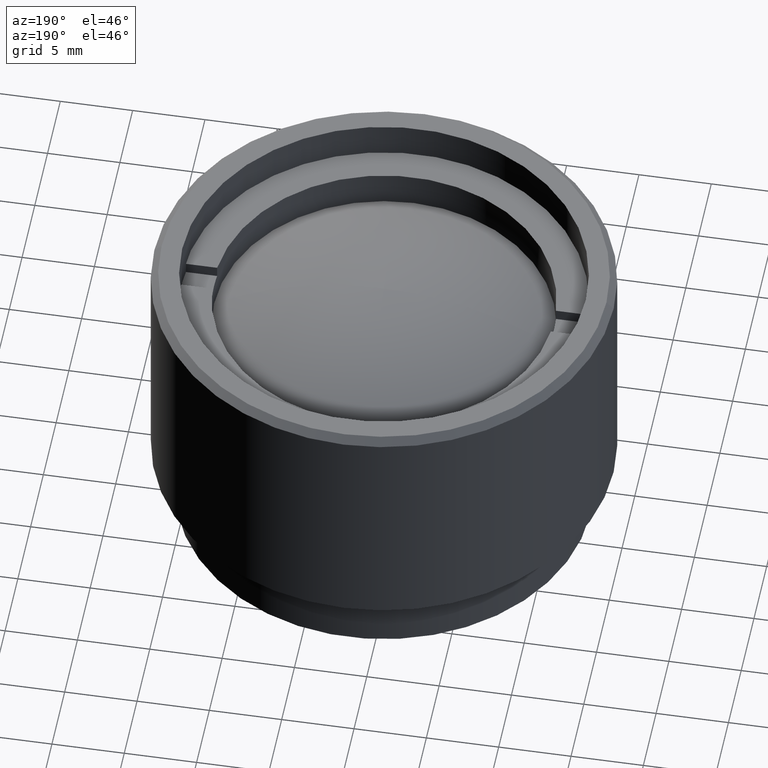
[diagram: clean part render]
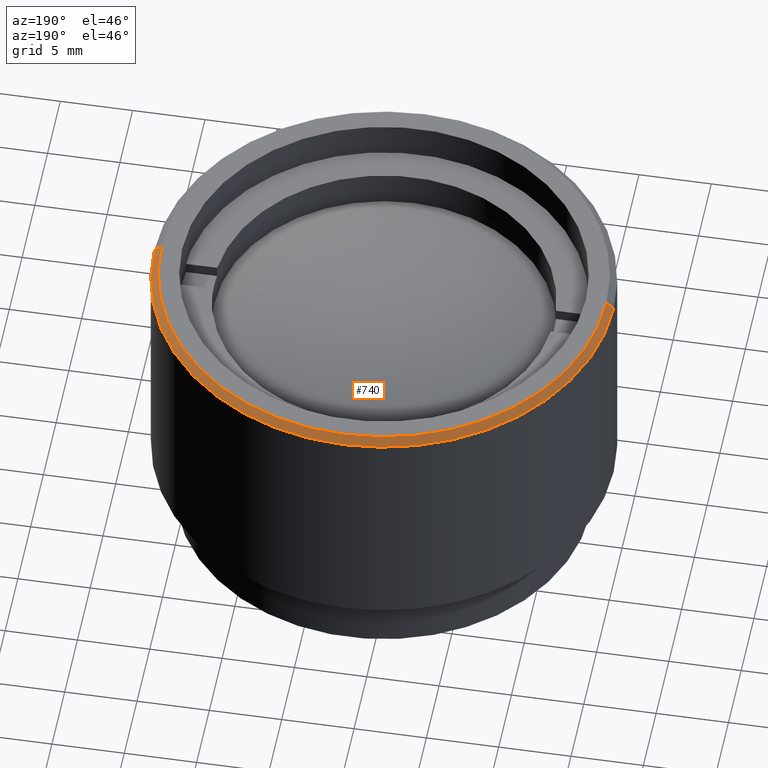
[diagram: same view with one face highlighted and labeled with its STEP entity id]
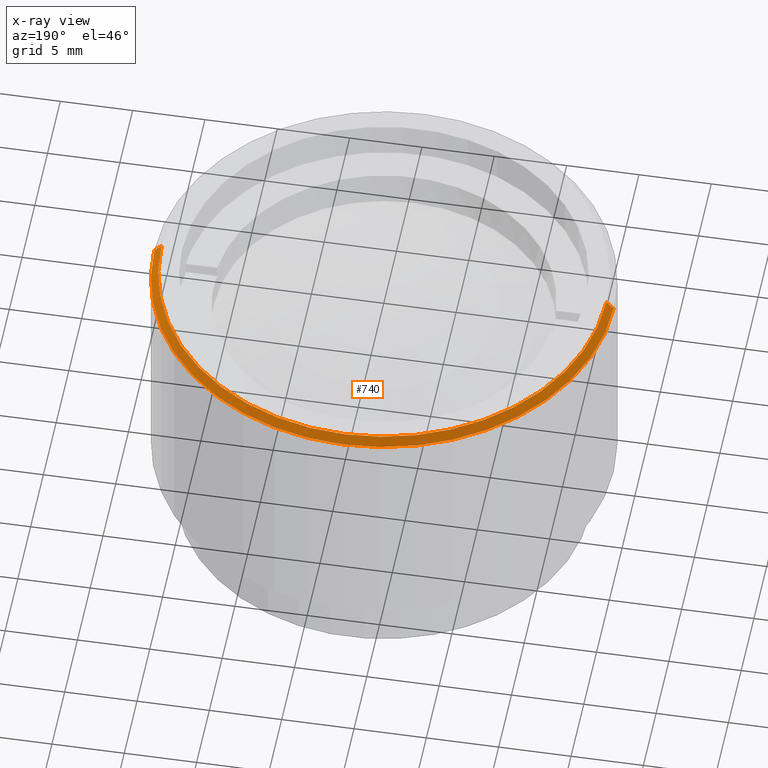
[diagram: x-ray of the same camera — body ghosted, the highlighted face saturated]
A machine part, auxiliary view. The second image highlights one B-rep face of the part: STEP entity #740.
The next image is the same camera in x-ray: the body ghosted, the highlighted face saturated — about 0% of this face is hidden behind the body in this view.
In plain terms, the highlighted conical surface has half-angle 45 deg.
Its self-contained STEP definition (entity closure, byte-faithful):
#27 = AXIS2_PLACEMENT_3D ( 'NONE', #486, #1141, #1397 ) ;
#62 = AXIS2_PLACEMENT_3D ( 'NONE', #326, #578, #983 ) ;
#67 = EDGE_LOOP ( 'NONE', ( #138, #1154, #836, #75 ) ) ;
#75 = ORIENTED_EDGE ( 'NONE', *, *, #596, .F. ) ;
#138 = ORIENTED_EDGE ( 'NONE', *, *, #427, .F. ) ;
#184 = CARTESIAN_POINT ( 'NONE',  ( -15.87800000000000011, 0.000000000000000000, 20.99999999999999289 ) ) ;
#217 = DIRECTION ( 'NONE',  ( 0.000000000000000000, 0.000000000000000000, -1.000000000000000000 ) ) ;
#230 = VERTEX_POINT ( 'NONE', #1215 ) ;
#254 = DIRECTION ( 'NONE',  ( -1.000000000000000000, 0.000000000000000000, 0.000000000000000000 ) ) ;
#278 = VERTEX_POINT ( 'NONE', #574 ) ;
#326 = CARTESIAN_POINT ( 'NONE',  ( 0.000000000000000000, 0.000000000000000000, 21.50000000000000000 ) ) ;
#427 = EDGE_CURVE ( 'NONE', #278, #803, #1547, .T. ) ;
#444 = EDGE_CURVE ( 'NONE', #278, #230, #693, .T. ) ;
#464 = VERTEX_POINT ( 'NONE', #184 ) ;
#480 = CARTESIAN_POINT ( 'NONE',  ( 0.000000000000000000, 0.000000000000000000, 21.50000000000000000 ) ) ;
#486 = CARTESIAN_POINT ( 'NONE',  ( 0.000000000000000000, 0.000000000000000000, 20.99999999999999289 ) ) ;
#540 = CARTESIAN_POINT ( 'NONE',  ( -15.37800000000000900, 0.000000000000000000, 21.50000000000000000 ) ) ;
#574 = CARTESIAN_POINT ( 'NONE',  ( 15.37800000000000900, 1.913878017707484038E-15, 21.50000000000000000 ) ) ;
#578 = DIRECTION ( 'NONE',  ( 0.000000000000000000, 0.000000000000000000, 1.000000000000000000 ) ) ;
#596 = EDGE_CURVE ( 'NONE', #803, #464, #1226, .T. ) ;
#693 = LINE ( 'NONE', #948, #1023 ) ;
#702 = DIRECTION ( 'NONE',  ( 0.7071067811865376918, 8.659560562354813296E-17, -0.7071067811865574537 ) ) ;
#740 = ADVANCED_FACE ( 'NONE', ( #1423 ), #1193, .T. ) ;
#803 = VERTEX_POINT ( 'NONE', #540 ) ;
#836 = ORIENTED_EDGE ( 'NONE', *, *, #1100, .F. ) ;
#948 = CARTESIAN_POINT ( 'NONE',  ( 15.37800000000000900, 1.883261847728801040E-15, 21.50000000000000000 ) ) ;
#975 = CARTESIAN_POINT ( 'NONE',  ( -15.37800000000000900, 0.000000000000000000, 21.50000000000000000 ) ) ;
#983 = DIRECTION ( 'NONE',  ( 1.000000000000000000, 0.000000000000000000, 0.000000000000000000 ) ) ;
#989 = DIRECTION ( 'NONE',  ( -0.7071067811865376918, 0.000000000000000000, -0.7071067811865574537 ) ) ;
#1023 = VECTOR ( 'NONE', #702, 999.9999999999998863 ) ;
#1100 = EDGE_CURVE ( 'NONE', #464, #230, #1435, .T. ) ;
#1141 = DIRECTION ( 'NONE',  ( 0.000000000000000000, 0.000000000000000000, -1.000000000000000000 ) ) ;
#1154 = ORIENTED_EDGE ( 'NONE', *, *, #444, .T. ) ;
#1183 = AXIS2_PLACEMENT_3D ( 'NONE', #480, #217, #254 ) ;
#1193 = CONICAL_SURFACE ( 'NONE', #1183, 15.37800000000000900, 0.7853981633974344012 ) ;
#1215 = CARTESIAN_POINT ( 'NONE',  ( 15.87800000000000011, 1.944494187686167431E-15, 20.99999999999999289 ) ) ;
#1226 = LINE ( 'NONE', #975, #1357 ) ;
#1357 = VECTOR ( 'NONE', #989, 999.9999999999998863 ) ;
#1397 = DIRECTION ( 'NONE',  ( 1.000000000000000000, 0.000000000000000000, 0.000000000000000000 ) ) ;
#1423 = FACE_OUTER_BOUND ( 'NONE', #67, .T. ) ;
#1435 = CIRCLE ( 'NONE', #27, 15.87800000000000011 ) ;
#1547 = CIRCLE ( 'NONE', #62, 15.37800000000000900 ) ;